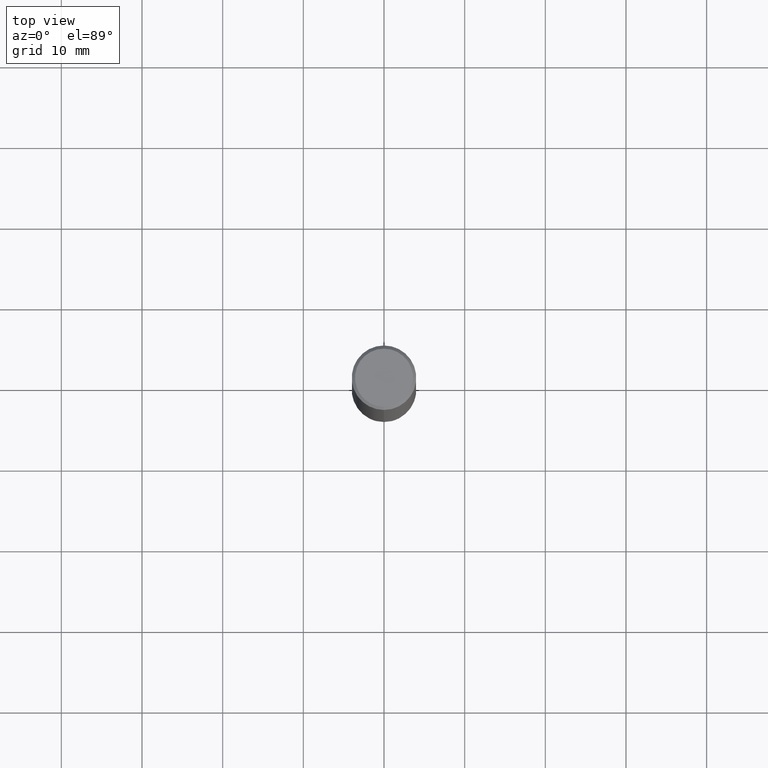
[diagram: clean part render]
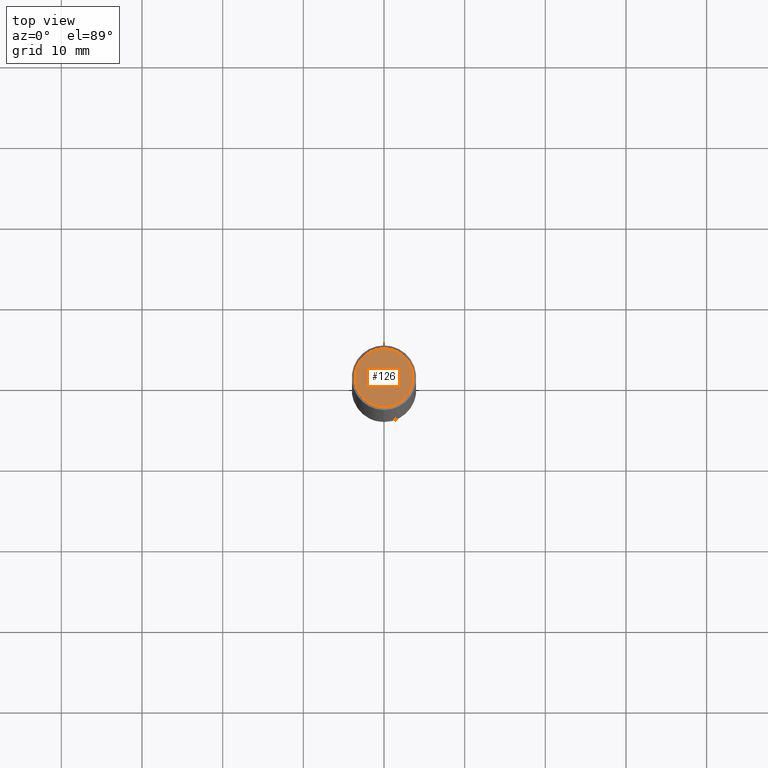
[diagram: same view with one face highlighted and labeled with its STEP entity id]
A machine part, top view. The second image highlights one B-rep face of the part: STEP entity #126.
In plain terms, the highlighted planar face has unit normal (-0, 0, 1).
Its self-contained STEP definition (entity closure, byte-faithful):
#104=VERTEX_POINT('',#204);
#106=EDGE_CURVE('',#132,#104,#206,.T.);
#108=EDGE_CURVE('',#104,#132,#208,.T.);
#126=ADVANCED_FACE('',(#227),#228,.T.);
#132=VERTEX_POINT('',#234);
#204=CARTESIAN_POINT('',(4.40858287376056E-016,-3.6,0.0));
#206=CIRCLE('',#309,3.6);
#208=CIRCLE('',#312,3.6);
#227=FACE_OUTER_BOUND('',#338,.T.);
#228=PLANE('',#339);
#234=CARTESIAN_POINT('',(0.0,3.6,0.0));
#309=AXIS2_PLACEMENT_3D('',#425,#426,#427);
#312=AXIS2_PLACEMENT_3D('',#428,#429,#430);
#338=EDGE_LOOP('',(#455,#456));
#339=AXIS2_PLACEMENT_3D('',#457,#458,#459);
#425=CARTESIAN_POINT('',(0.0,0.0,0.0));
#426=DIRECTION('',(0.0,0.0,-1.0));
#427=DIRECTION('',(0.0,1.0,0.0));
#428=CARTESIAN_POINT('',(0.0,0.0,0.0));
#429=DIRECTION('',(0.0,0.0,-1.0));
#430=DIRECTION('',(0.0,1.0,0.0));
#455=ORIENTED_EDGE('',*,*,#106,.F.);
#456=ORIENTED_EDGE('',*,*,#108,.F.);
#457=CARTESIAN_POINT('',(0.0,1.8,0.0));
#458=DIRECTION('',(-0.0,0.0,1.0));
#459=DIRECTION('',(0.0,-1.0,0.0));